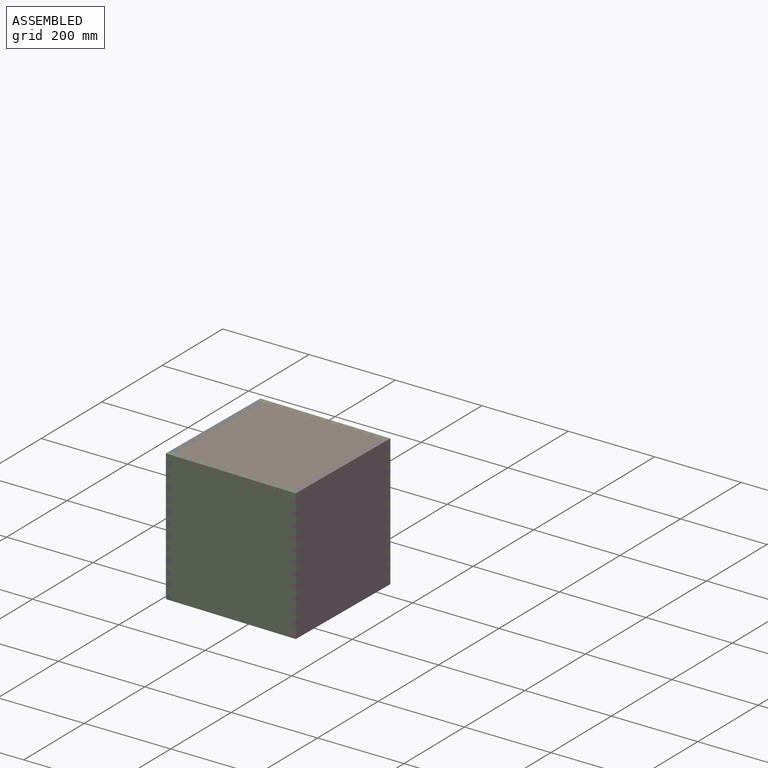
[diagram: assembled view]
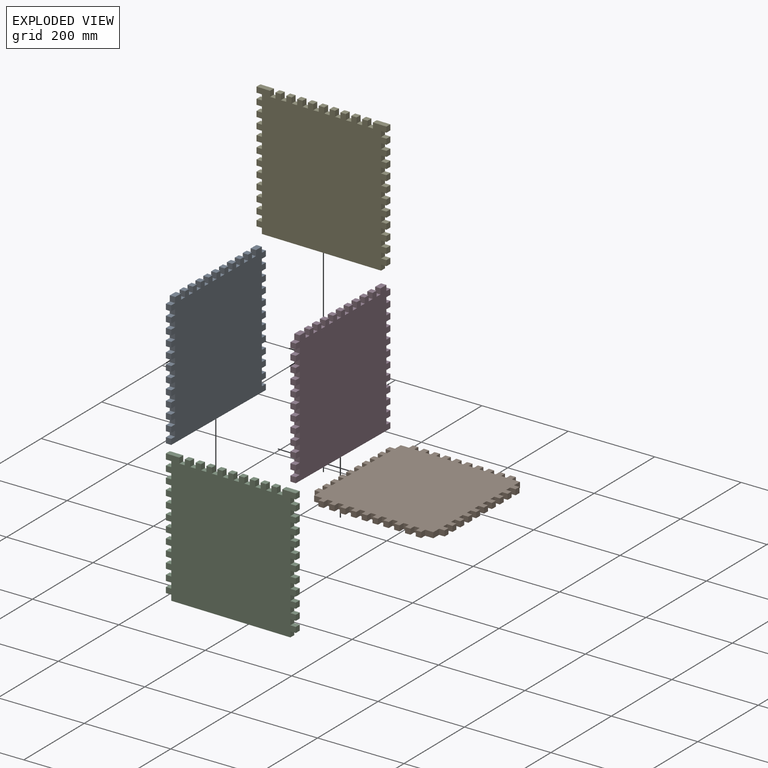
[diagram: exploded view]
GUIDED TOUR — MATED ASSEMBLY (Onshape document 2b9936c3375a75adb1b2ecce, AutoMate assembly 2b9936c3375a75adb1b2ecce_4f21fa2a8815077113d2563b_b55390586601b0d4ac6fc191_default)

This assembly has 5 components, labeled P0..P4 below (a component is one placed occurrence of a part; the same part can appear more than once), held together by 5 mates. A mate is a constraint between two components; its type names the relative motion it leaves free:
  FASTENED — locks the two components together rigidly (no relative motion).
Axis/direction vectors are unit vectors and 'through' points are millimeter coordinates, both in the assembly's world frame.

MATES
  1. FASTENED "Fastened 5": P1 <-> P2, direction (1.000, -0.018, 0.000) through (489.97, 732.56, 597.58) mm
  2. FASTENED "Fastened 1": P2 <-> P0, direction (0.000, 0.000, -1.000) through (223.31, 737.48, 311.83) mm
  3. FASTENED "Fastened 4": P3 <-> P2, direction (0.000, 0.000, 1.000) through (515.36, 732.10, 591.23) mm
  4. FASTENED "Fastened 3": P3 <-> P4, direction (0.000, 0.000, 1.000) through (520.75, 1024.15, 591.23) mm
  5. FASTENED "Fastened 2": P0 <-> P4, direction (0.000, 0.000, 1.000) through (228.70, 1029.53, 311.83) mm

ASSEMBLY ORDER
  1. P2 — the base component [order heuristic]
  2. P0 [order heuristic]
  3. P1 [order heuristic]
  4. P3 [order heuristic]
  5. P4 [order heuristic]
Order-tag legend:
  [order heuristic] — this assembly is geometrically interlocked (no collision-free removal order exists), so components are listed in mate-graph order; insertion feasibility is not verified.

Of the 5 components, 1 carries the full construction recipe — the FeatureScript program that regenerates the part's solid from scratch; the rest are supplied as boundary geometry only.
Each toured component is shown spotlighted twice — in the assembled view, then in the exploded view, where a leader line traces a displaced component back to its assembled socket (saturated green if recipe-attached, orange if geometry-only; every other component desaturated gray) — followed by its recipe or geometry summary and the mates that hold it.
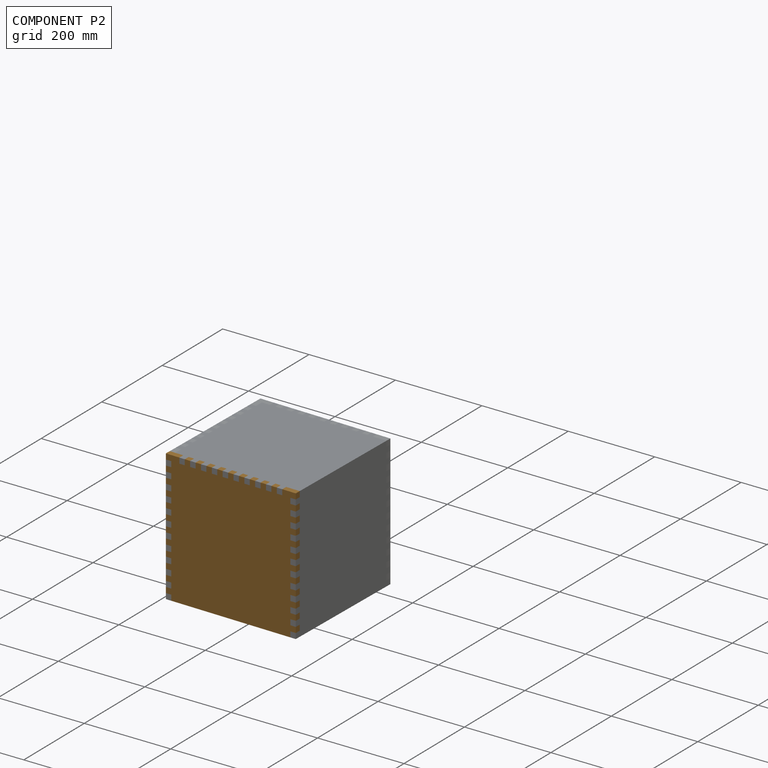
[diagram: component P2 — assembled]
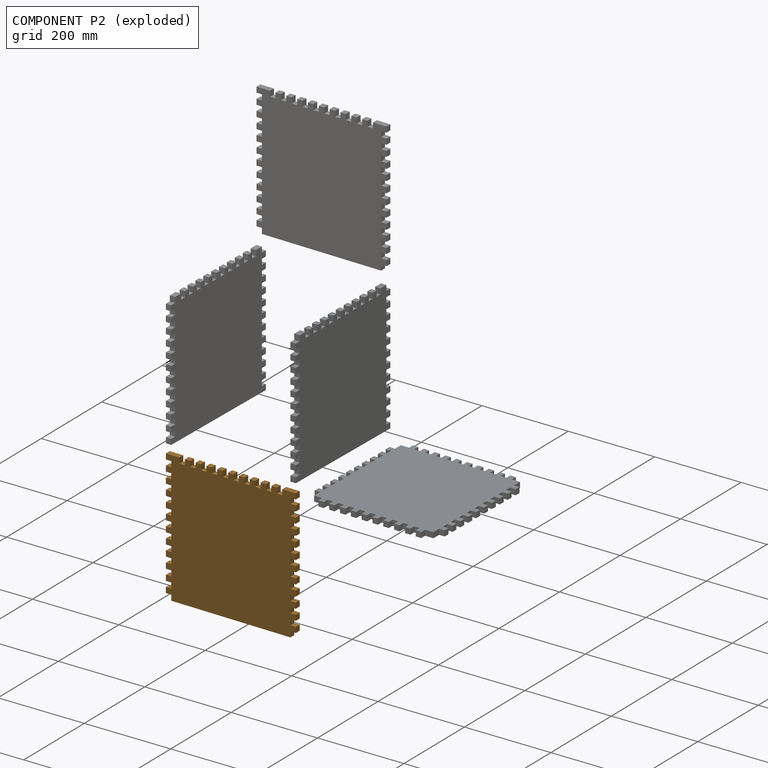
[diagram: component P2 — exploded]
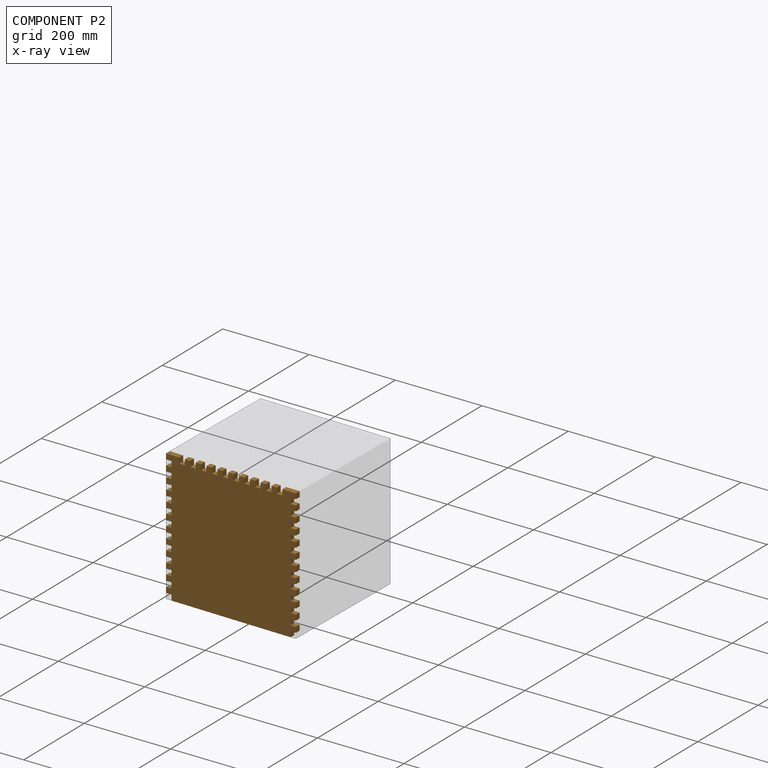
[diagram: component P2 — x-ray view]
COMPONENT P2 — geometry summary (no construction recipe available for this part):
  bounding box: 304.8 x 304.8 x 12.7 mm
  B-rep topology: 1 solid, 138 faces, 816 edges
  volume: 1110224 mm^3 (94% of its bounding box)
  symmetry: 2-fold rotationally symmetric about the z axis; mirror-symmetric across its x mid-plane, y mid-plane
Held by: FASTENED mate "Fastened 5" to P1; FASTENED mate "Fastened 1" to P0; FASTENED mate "Fastened 4" to P3.
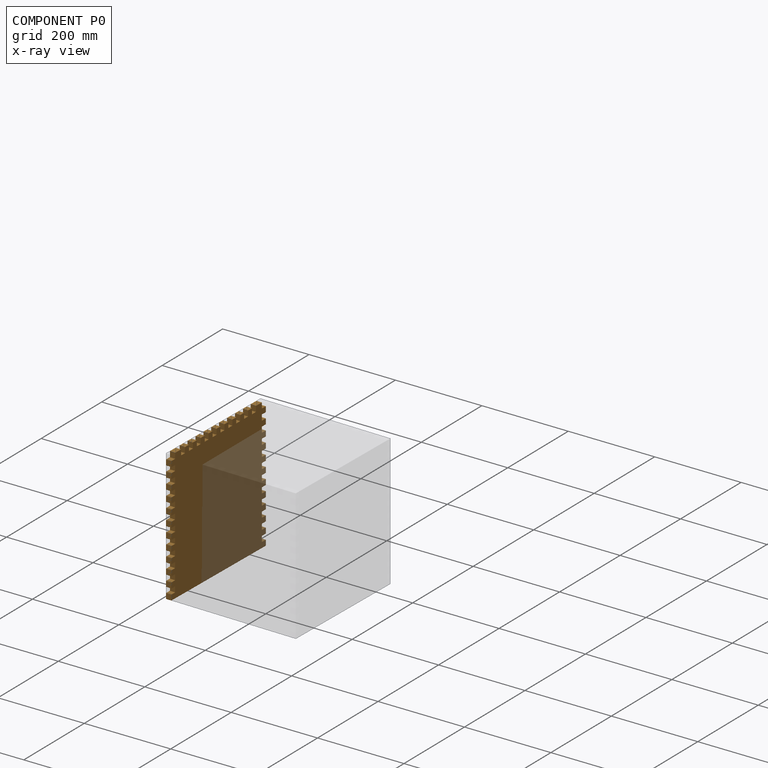
[diagram: component P0 — x-ray view]
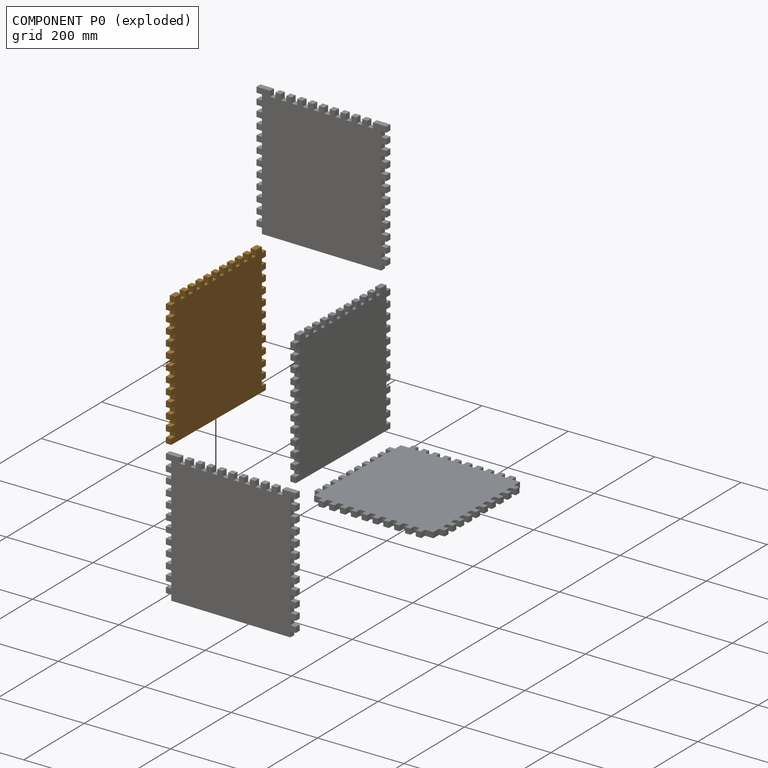
[diagram: component P0 — exploded]
COMPONENT P0 — geometry summary (no construction recipe available for this part):
  bounding box: 304.8 x 304.8 x 12.7 mm
  B-rep topology: 1 solid, 138 faces, 816 edges
  volume: 1110224 mm^3 (94% of its bounding box)
  symmetry: 2-fold rotationally symmetric about the z axis; mirror-symmetric across its x mid-plane, y mid-plane
Held by: FASTENED mate "Fastened 1" to P2; FASTENED mate "Fastened 2" to P4.
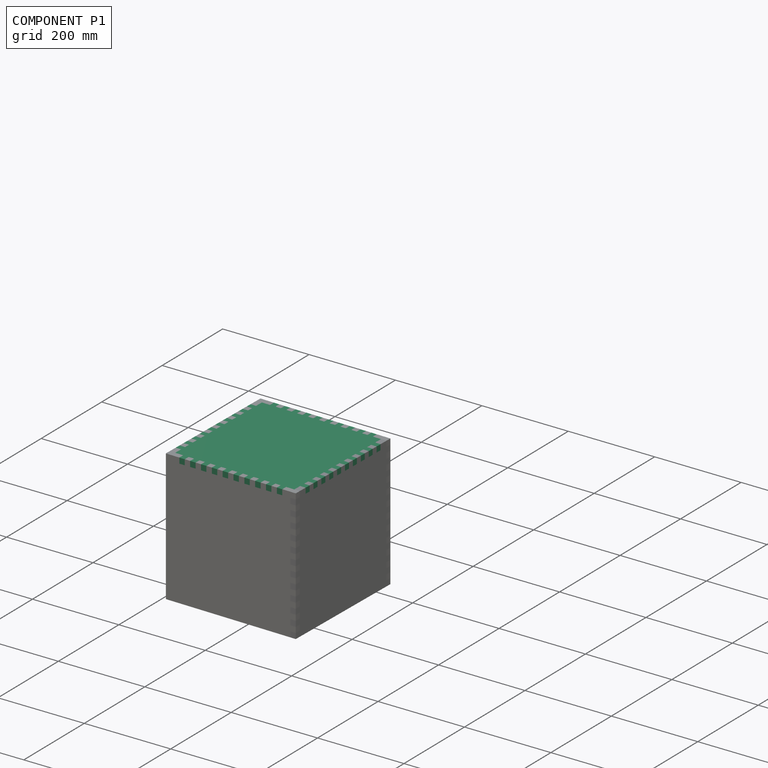
[diagram: component P1 — assembled]
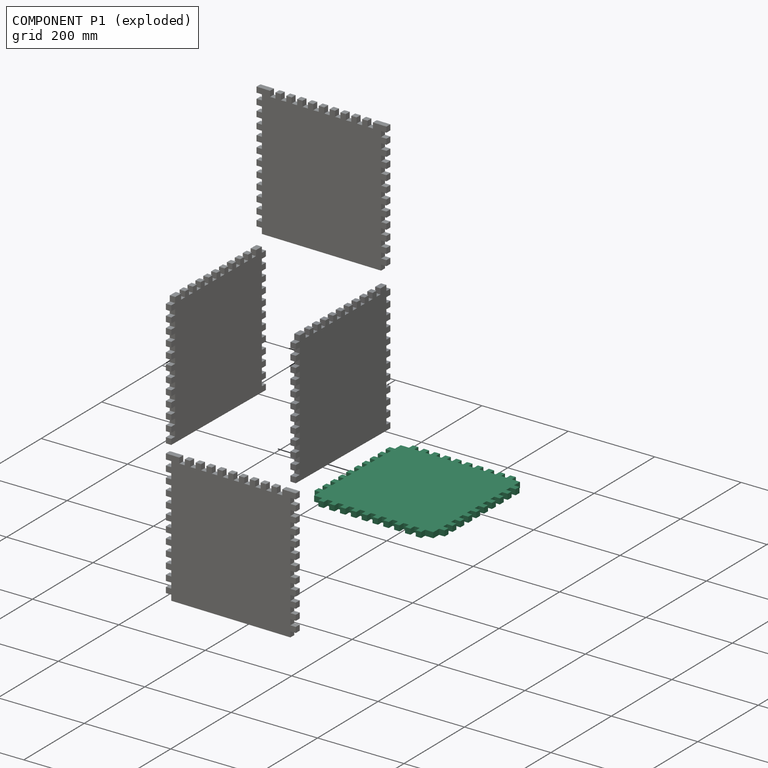
[diagram: component P1 — exploded]
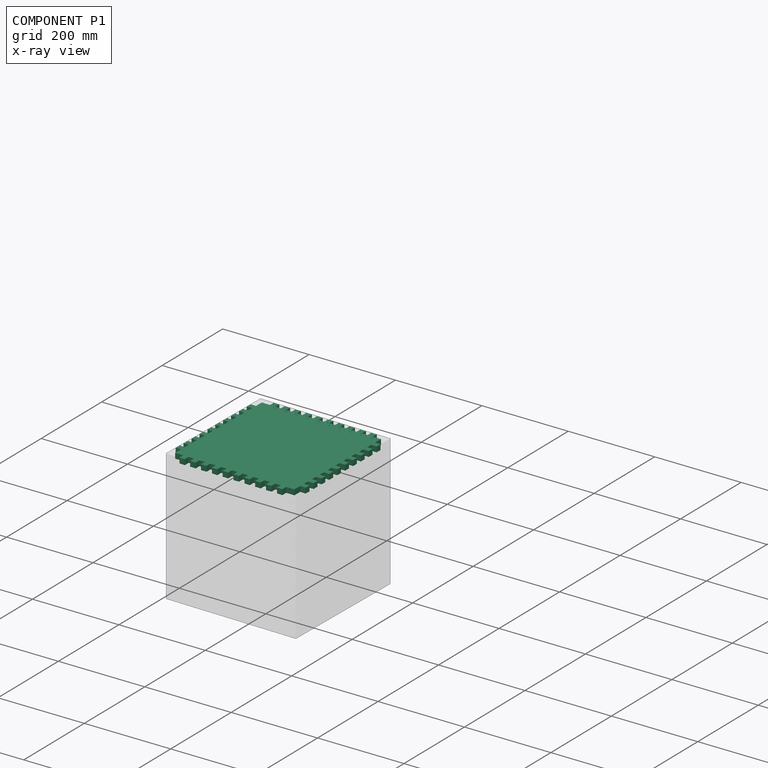
[diagram: component P1 — x-ray view]
COMPONENT P1 — recipe-attached (CADFS 00981755, mesh-verified: the recipe's output STEP matches this component's geometry to below the mesh-comparison resolution (tessellation chordal tolerance ~0.647 mm)).
Held by: FASTENED mate "Fastened 5" to P2.
Construction recipe (FeatureScript — the CAD program that rebuilds this solid; sketch coordinates are in the units given by the * unit suffixes, e.g. mm):

FeatureScript 1511;
import(path : "onshape/std/geometry.fs", version : "1511.0");
import(path : "onshape/std/common.fs", version : "1511.0");
const mm = millimeter;
const VERTEX = EntityType.VERTEX;
const EDGE = EntityType.EDGE;
const FACE = EntityType.FACE;
const BODY = EntityType.BODY;
function v(x, y){return vector(x, y);}
function OD(order){return orderDisambiguation(order);}
function OSD(set){return originalSetDisambiguation(set);}
function TD(topology){return topologyDisambiguation(topology);}
function TDD(query){return trueDependencyDisambiguation(query);}
function sQuery(a, b, c) {return sketchEntityQuery(a, b, c);}

annotation { "Feature Type Name" : "Feature", "Feature Type Description" : "" }
export const myFeature = defineFeature(function(context is Context, id is Id, definition is map)
    precondition{}
    {
        {
            var Q0;
            Q0=qCreatedBy(makeId("Front.planeOp"),FACE);
            var sketch = newSketch(context, id + "F0", { "sketchPlane" : qUnion([Q0])});
            skPoint(sketch, "E0.middle", {"position": v(0, 0) * mm});
            skLineSegment(sketch, "E1", {"start": v(-120.65, 139.7) * mm, "end": v(-120.65, 152.4) * mm});
            skLineSegment(sketch, "E2", {"start": v(-120.65, 152.4) * mm, "end": v(-107.95, 152.4) * mm});
            skLineSegment(sketch, "E3", {"start": v(-107.95, 152.4) * mm, "end": v(-107.95, 139.7) * mm});
            skLineSegment(sketch, "E4", {"start": v(-107.95, 139.7) * mm, "end": v(-95.25, 139.7) * mm});
            skLineSegment(sketch, "E5", {"start": v(-120.65, 139.7) * mm, "end": v(-139.7, 139.7) * mm});
            skLineSegment(sketch, "E6.1.0.0", {"start": v(-95.25, 152.4) * mm, "end": v(-82.55, 152.4) * mm});
            skLineSegment(sketch, "E6.1.0.1", {"start": v(-95.25, 139.7) * mm, "end": v(-95.25, 152.4) * mm});
            skLineSegment(sketch, "E6.1.0.2", {"start": v(-82.55, 139.7) * mm, "end": v(-69.85, 139.7) * mm});
            skLineSegment(sketch, "E6.1.0.3", {"start": v(-82.55, 152.4) * mm, "end": v(-82.55, 139.7) * mm});
            skLineSegment(sketch, "E6.2.0.0", {"start": v(-69.85, 152.4) * mm, "end": v(-57.15, 152.4) * mm});
            skLineSegment(sketch, "E6.2.0.1", {"start": v(-69.85, 139.7) * mm, "end": v(-69.85, 152.4) * mm});
            skLineSegment(sketch, "E6.2.0.2", {"start": v(-57.15, 139.7) * mm, "end": v(-44.45, 139.7) * mm});
            skLineSegment(sketch, "E6.2.0.3", {"start": v(-57.15, 152.4) * mm, "end": v(-57.15, 139.7) * mm});
            skLineSegment(sketch, "E6.3.0.0", {"start": v(-44.45, 152.4) * mm, "end": v(-31.75, 152.4) * mm});
            skLineSegment(sketch, "E6.3.0.1", {"start": v(-44.45, 139.7) * mm, "end": v(-44.45, 152.4) * mm});
            skLineSegment(sketch, "E6.3.0.2", {"start": v(-31.75, 139.7) * mm, "end": v(-19.05, 139.7) * mm});
            skLineSegment(sketch, "E6.3.0.3", {"start": v(-31.75, 152.4) * mm, "end": v(-31.75, 139.7) * mm});
            skLineSegment(sketch, "E6.4.0.0", {"start": v(-19.05, 152.4) * mm, "end": v(-6.35, 152.4) * mm});
            skLineSegment(sketch, "E6.4.0.1", {"start": v(-19.05, 139.7) * mm, "end": v(-19.05, 152.4) * mm});
            skLineSegment(sketch, "E6.4.0.2", {"start": v(-6.35, 139.7) * mm, "end": v(6.35, 139.7) * mm});
            skLineSegment(sketch, "E6.4.0.3", {"start": v(-6.35, 152.4) * mm, "end": v(-6.35, 139.7) * mm});
            skLineSegment(sketch, "E6.5.0.0", {"start": v(6.35, 152.4) * mm, "end": v(19.05, 152.4) * mm});
            skLineSegment(sketch, "E6.5.0.1", {"start": v(6.35, 139.7) * mm, "end": v(6.35, 152.4) * mm});
            skLineSegment(sketch, "E6.5.0.2", {"start": v(19.05, 139.7) * mm, "end": v(31.75, 139.7) * mm});
            skLineSegment(sketch, "E6.5.0.3", {"start": v(19.05, 152.4) * mm, "end": v(19.05, 139.7) * mm});
            skLineSegment(sketch, "E6.6.0.0", {"start": v(31.75, 152.4) * mm, "end": v(44.45, 152.4) * mm});
            skLineSegment(sketch, "E6.6.0.1", {"start": v(31.75, 139.7) * mm, "end": v(31.75, 152.4) * mm});
            skLineSegment(sketch, "E6.6.0.2", {"start": v(44.45, 139.7) * mm, "end": v(57.15, 139.7) * mm});
            skLineSegment(sketch, "E6.6.0.3", {"start": v(44.45, 152.4) * mm, "end": v(44.45, 139.7) * mm});
            skLineSegment(sketch, "E6.7.0.0", {"start": v(57.15, 152.4) * mm, "end": v(69.85, 152.4) * mm});
            skLineSegment(sketch, "E6.7.0.1", {"start": v(57.15, 139.7) * mm, "end": v(57.15, 152.4) * mm});
            skLineSegment(sketch, "E6.7.0.2", {"start": v(69.85, 139.7) * mm, "end": v(82.55, 139.7) * mm});
            skLineSegment(sketch, "E6.7.0.3", {"start": v(69.85, 152.4) * mm, "end": v(69.85, 139.7) * mm});
            skLineSegment(sketch, "E6.8.0.0", {"start": v(82.55, 152.4) * mm, "end": v(95.25, 152.4) * mm});
            skLineSegment(sketch, "E6.8.0.1", {"start": v(82.55, 139.7) * mm, "end": v(82.55, 152.4) * mm});
            skLineSegment(sketch, "E6.8.0.2", {"start": v(95.25, 139.7) * mm, "end": v(107.95, 139.7) * mm});
            skLineSegment(sketch, "E6.8.0.3", {"start": v(95.25, 152.4) * mm, "end": v(95.25, 139.7) * mm});
            skLineSegment(sketch, "E6.9.0.0", {"start": v(107.95, 152.4) * mm, "end": v(120.65, 152.4) * mm});
            skLineSegment(sketch, "E6.9.0.1", {"start": v(107.95, 139.7) * mm, "end": v(107.95, 152.4) * mm});
            skLineSegment(sketch, "E6.9.0.3", {"start": v(120.65, 152.4) * mm, "end": v(120.65, 139.7) * mm});
            skLineSegment(sketch, "E6.direction1", {"start": v(-120.65, 139.7) * mm, "end": v(-95.25, 139.7) * mm, "construction": true});
            skLineSegment(sketch, "E7", {"start": v(120.65, 139.7) * mm, "end": v(139.7, 139.7) * mm});
            skLineSegment(sketch, "E8.MirrorCS", {"start": v(-120.65, -139.7) * mm, "end": v(-95.25, -139.7) * mm, "construction": true});
            skLineSegment(sketch, "E9.MirrorCS", {"start": v(-95.25, -139.7) * mm, "end": v(-95.25, -152.4) * mm});
            skLineSegment(sketch, "E10.MirrorCS", {"start": v(-107.95, -152.4) * mm, "end": v(-107.95, -139.7) * mm});
            skLineSegment(sketch, "E11.MirrorCS", {"start": v(-107.95, -139.7) * mm, "end": v(-95.25, -139.7) * mm});
            skLineSegment(sketch, "E12.MirrorCS", {"start": v(-120.65, -152.4) * mm, "end": v(-107.95, -152.4) * mm});
            skLineSegment(sketch, "E13.MirrorCS", {"start": v(-95.25, -152.4) * mm, "end": v(-82.55, -152.4) * mm});
            skLineSegment(sketch, "E14.MirrorCS", {"start": v(-120.65, -139.7) * mm, "end": v(-120.65, -152.4) * mm});
            skLineSegment(sketch, "E15.MirrorCS", {"start": v(82.55, -139.7) * mm, "end": v(82.55, -152.4) * mm});
            skLineSegment(sketch, "E16.MirrorCS", {"start": v(82.55, -152.4) * mm, "end": v(95.25, -152.4) * mm});
            skLineSegment(sketch, "E17.MirrorCS", {"start": v(6.35, -152.4) * mm, "end": v(19.05, -152.4) * mm});
            skLineSegment(sketch, "E18.MirrorCS", {"start": v(-44.45, -152.4) * mm, "end": v(-31.75, -152.4) * mm});
            skLineSegment(sketch, "E19.MirrorCS", {"start": v(-31.75, -139.7) * mm, "end": v(-19.05, -139.7) * mm});
            skLineSegment(sketch, "E20.MirrorCS", {"start": v(-19.05, -152.4) * mm, "end": v(-6.35, -152.4) * mm});
            skLineSegment(sketch, "E21.MirrorCS", {"start": v(-82.55, -139.7) * mm, "end": v(-69.85, -139.7) * mm});
            skLineSegment(sketch, "E22.MirrorCS", {"start": v(-31.75, -152.4) * mm, "end": v(-31.75, -139.7) * mm});
            skLineSegment(sketch, "E23.MirrorCS", {"start": v(44.45, -152.4) * mm, "end": v(44.45, -139.7) * mm});
            skLineSegment(sketch, "E24.MirrorCS", {"start": v(31.75, -139.7) * mm, "end": v(31.75, -152.4) * mm});
            skLineSegment(sketch, "E25.MirrorCS", {"start": v(107.95, -139.7) * mm, "end": v(107.95, -152.4) * mm});
            skLineSegment(sketch, "E26.MirrorCS", {"start": v(-19.05, -139.7) * mm, "end": v(-19.05, -152.4) * mm});
            skLineSegment(sketch, "E27.MirrorCS", {"start": v(-69.85, -139.7) * mm, "end": v(-69.85, -152.4) * mm});
            skLineSegment(sketch, "E28.MirrorCS", {"start": v(107.95, -152.4) * mm, "end": v(120.65, -152.4) * mm});
            skLineSegment(sketch, "E29.MirrorCS", {"start": v(95.25, -152.4) * mm, "end": v(95.25, -139.7) * mm});
            skLineSegment(sketch, "E30.MirrorCS", {"start": v(31.75, -152.4) * mm, "end": v(44.45, -152.4) * mm});
            skLineSegment(sketch, "E31.MirrorCS", {"start": v(-6.35, -139.7) * mm, "end": v(6.35, -139.7) * mm});
            skLineSegment(sketch, "E32.MirrorCS", {"start": v(-69.85, -152.4) * mm, "end": v(-57.15, -152.4) * mm});
            skLineSegment(sketch, "E33.MirrorCS", {"start": v(69.85, -139.7) * mm, "end": v(82.55, -139.7) * mm});
            skLineSegment(sketch, "E34.MirrorCS", {"start": v(-6.35, -152.4) * mm, "end": v(-6.35, -139.7) * mm});
            skLineSegment(sketch, "E35.MirrorCS", {"start": v(57.15, -152.4) * mm, "end": v(69.85, -152.4) * mm});
            skLineSegment(sketch, "E36.MirrorCS", {"start": v(-44.45, -139.7) * mm, "end": v(-44.45, -152.4) * mm});
            skLineSegment(sketch, "E37.MirrorCS", {"start": v(-57.15, -139.7) * mm, "end": v(-44.45, -139.7) * mm});
            skLineSegment(sketch, "E38.MirrorCS", {"start": v(-120.65, -139.7) * mm, "end": v(-139.7, -139.7) * mm});
            skLineSegment(sketch, "E39.MirrorCS", {"start": v(-82.55, -152.4) * mm, "end": v(-82.55, -139.7) * mm});
            skLineSegment(sketch, "E40.MirrorCS", {"start": v(44.45, -139.7) * mm, "end": v(57.15, -139.7) * mm});
            skLineSegment(sketch, "E41.MirrorCS", {"start": v(95.25, -139.7) * mm, "end": v(107.95, -139.7) * mm});
            skLineSegment(sketch, "E42.MirrorCS", {"start": v(57.15, -139.7) * mm, "end": v(57.15, -152.4) * mm});
            skLineSegment(sketch, "E43.MirrorCS", {"start": v(69.85, -152.4) * mm, "end": v(69.85, -139.7) * mm});
            skLineSegment(sketch, "E44.MirrorCS", {"start": v(120.65, -152.4) * mm, "end": v(120.65, -139.7) * mm});
            skLineSegment(sketch, "E45.MirrorCS", {"start": v(-57.15, -152.4) * mm, "end": v(-57.15, -139.7) * mm});
            skLineSegment(sketch, "E46.MirrorCS", {"start": v(19.05, -152.4) * mm, "end": v(19.05, -139.7) * mm});
            skLineSegment(sketch, "E47.MirrorCS", {"start": v(120.65, -139.7) * mm, "end": v(139.7, -139.7) * mm});
            skLineSegment(sketch, "E48.MirrorCS", {"start": v(19.05, -139.7) * mm, "end": v(31.75, -139.7) * mm});
            skLineSegment(sketch, "E49.MirrorCS", {"start": v(6.35, -139.7) * mm, "end": v(6.35, -152.4) * mm});
            skLineSegment(sketch, "E50.MirrorCS", {"start": v(-152.4, 107.95) * mm, "end": v(-139.7, 107.95) * mm});
            skLineSegment(sketch, "E51.MirrorCS", {"start": v(-139.7, 107.95) * mm, "end": v(-139.7, 95.25) * mm});
            skLineSegment(sketch, "E52.MirrorCS", {"start": v(-152.4, 120.65) * mm, "end": v(-152.4, 107.95) * mm});
            skLineSegment(sketch, "E53.MirrorCS", {"start": v(-152.4, -107.95) * mm, "end": v(-152.4, -120.65) * mm});
            skLineSegment(sketch, "E54.MirrorCS", {"start": v(-139.7, 44.45) * mm, "end": v(-152.4, 44.45) * mm});
            skLineSegment(sketch, "E55.MirrorCS", {"start": v(-139.7, 69.85) * mm, "end": v(-152.4, 69.85) * mm});
            skLineSegment(sketch, "E56.MirrorCS", {"start": v(-152.4, -95.25) * mm, "end": v(-139.7, -95.25) * mm});
            skLineSegment(sketch, "E57.MirrorCS", {"start": v(-139.7, 6.35) * mm, "end": v(-139.7, -6.35) * mm});
            skLineSegment(sketch, "E58.MirrorCS", {"start": v(-139.7, 82.55) * mm, "end": v(-139.7, 69.85) * mm});
            skLineSegment(sketch, "E59.MirrorCS", {"start": v(-152.4, -31.75) * mm, "end": v(-152.4, -44.45) * mm});
            skLineSegment(sketch, "E60.MirrorCS", {"start": v(-139.7, -6.35) * mm, "end": v(-152.4, -6.35) * mm});
            skLineSegment(sketch, "E61.MirrorCS", {"start": v(-139.7, -95.25) * mm, "end": v(-139.7, -107.95) * mm});
            skLineSegment(sketch, "E62.MirrorCS", {"start": v(-139.7, -69.85) * mm, "end": v(-139.7, -82.55) * mm});
            skLineSegment(sketch, "E63.MirrorCS", {"start": v(-139.7, 95.25) * mm, "end": v(-152.4, 95.25) * mm});
            skLineSegment(sketch, "E64.MirrorCS", {"start": v(-139.7, 19.05) * mm, "end": v(-152.4, 19.05) * mm});
            skLineSegment(sketch, "E65.MirrorCS", {"start": v(-139.7, -31.75) * mm, "end": v(-152.4, -31.75) * mm});
            skLineSegment(sketch, "E66.MirrorCS", {"start": v(-152.4, 95.25) * mm, "end": v(-152.4, 82.55) * mm});
            skLineSegment(sketch, "E67.MirrorCS", {"start": v(-152.4, 69.85) * mm, "end": v(-152.4, 57.15) * mm});
            skLineSegment(sketch, "E68.MirrorCS", {"start": v(-152.4, 6.35) * mm, "end": v(-139.7, 6.35) * mm});
            skLineSegment(sketch, "E69.MirrorCS", {"start": v(-152.4, 31.75) * mm, "end": v(-139.7, 31.75) * mm});
            skLineSegment(sketch, "E70.MirrorCS", {"start": v(-152.4, -69.85) * mm, "end": v(-139.7, -69.85) * mm});
            skLineSegment(sketch, "E71.MirrorCS", {"start": v(-139.7, -82.55) * mm, "end": v(-152.4, -82.55) * mm});
            skLineSegment(sketch, "E72.MirrorCS", {"start": v(-152.4, 19.05) * mm, "end": v(-152.4, 6.35) * mm});
            skLineSegment(sketch, "E73.MirrorCS", {"start": v(-152.4, 82.55) * mm, "end": v(-139.7, 82.55) * mm});
            skLineSegment(sketch, "E74.MirrorCS", {"start": v(-152.4, -6.35) * mm, "end": v(-152.4, -19.05) * mm});
            skLineSegment(sketch, "E75.MirrorCS", {"start": v(-152.4, -82.55) * mm, "end": v(-152.4, -95.25) * mm});
            skLineSegment(sketch, "E76.MirrorCS", {"start": v(-152.4, -57.15) * mm, "end": v(-152.4, -69.85) * mm});
            skLineSegment(sketch, "E77.MirrorCS", {"start": v(-152.4, -120.65) * mm, "end": v(-139.7, -120.65) * mm});
            skLineSegment(sketch, "E78.MirrorCS", {"start": v(-139.7, 31.75) * mm, "end": v(-139.7, 19.05) * mm});
            skLineSegment(sketch, "E79.MirrorCS", {"start": v(-152.4, 57.15) * mm, "end": v(-139.7, 57.15) * mm});
            skLineSegment(sketch, "E80.MirrorCS", {"start": v(-139.7, -44.45) * mm, "end": v(-139.7, -57.15) * mm});
            skLineSegment(sketch, "E81.MirrorCS", {"start": v(-139.7, -19.05) * mm, "end": v(-139.7, -31.75) * mm});
            skLineSegment(sketch, "E82.MirrorCS", {"start": v(-139.7, -107.95) * mm, "end": v(-152.4, -107.95) * mm});
            skLineSegment(sketch, "E83.MirrorCS", {"start": v(-152.4, 44.45) * mm, "end": v(-152.4, 31.75) * mm});
            skLineSegment(sketch, "E84.MirrorCS", {"start": v(-152.4, -44.45) * mm, "end": v(-139.7, -44.45) * mm});
            skLineSegment(sketch, "E85.MirrorCS", {"start": v(-139.7, -120.65) * mm, "end": v(-139.7, -139.7) * mm});
            skLineSegment(sketch, "E86.MirrorCS", {"start": v(-139.7, 120.65) * mm, "end": v(-152.4, 120.65) * mm});
            skLineSegment(sketch, "E87.MirrorCS", {"start": v(-152.4, -19.05) * mm, "end": v(-139.7, -19.05) * mm});
            skLineSegment(sketch, "E88.MirrorCS", {"start": v(-139.7, -57.15) * mm, "end": v(-152.4, -57.15) * mm});
            skLineSegment(sketch, "E89.MirrorCS", {"start": v(-139.7, 120.65) * mm, "end": v(-139.7, 139.7) * mm});
            skLineSegment(sketch, "E90.MirrorCS", {"start": v(-139.7, 57.15) * mm, "end": v(-139.7, 44.45) * mm});
            skLineSegment(sketch, "E91.MirrorCS", {"start": v(139.7, -120.65) * mm, "end": v(139.7, -139.7) * mm});
            skLineSegment(sketch, "E92.MirrorCS", {"start": v(139.7, 120.65) * mm, "end": v(139.7, 139.7) * mm});
            skLineSegment(sketch, "E93.MirrorCS", {"start": v(152.4, 120.65) * mm, "end": v(152.4, 107.95) * mm});
            skLineSegment(sketch, "E94.MirrorCS", {"start": v(139.7, -31.75) * mm, "end": v(152.4, -31.75) * mm});
            skLineSegment(sketch, "E95.MirrorCS", {"start": v(139.7, -19.05) * mm, "end": v(139.7, -31.75) * mm});
            skLineSegment(sketch, "E96.MirrorCS", {"start": v(139.7, -44.45) * mm, "end": v(139.7, -57.15) * mm});
            skLineSegment(sketch, "E97.MirrorCS", {"start": v(139.7, 31.75) * mm, "end": v(139.7, 19.05) * mm});
            skLineSegment(sketch, "E98.MirrorCS", {"start": v(152.4, 107.95) * mm, "end": v(139.7, 107.95) * mm});
            skLineSegment(sketch, "E99.MirrorCS", {"start": v(152.4, -57.15) * mm, "end": v(152.4, -69.85) * mm});
            skLineSegment(sketch, "E100.MirrorCS", {"start": v(152.4, 6.35) * mm, "end": v(139.7, 6.35) * mm});
            skLineSegment(sketch, "E101.MirrorCS", {"start": v(139.7, 6.35) * mm, "end": v(139.7, -6.35) * mm});
            skLineSegment(sketch, "E102.MirrorCS", {"start": v(152.4, 95.25) * mm, "end": v(152.4, 82.55) * mm});
            skLineSegment(sketch, "E103.MirrorCS", {"start": v(152.4, -107.95) * mm, "end": v(152.4, -120.65) * mm});
            skLineSegment(sketch, "E104.MirrorCS", {"start": v(152.4, -95.25) * mm, "end": v(139.7, -95.25) * mm});
            skLineSegment(sketch, "E105.MirrorCS", {"start": v(139.7, 120.65) * mm, "end": v(152.4, 120.65) * mm});
            skLineSegment(sketch, "E106.MirrorCS", {"start": v(152.4, -69.85) * mm, "end": v(139.7, -69.85) * mm});
            skLineSegment(sketch, "E107.MirrorCS", {"start": v(139.7, 57.15) * mm, "end": v(139.7, 44.45) * mm});
            skLineSegment(sketch, "E108.MirrorCS", {"start": v(139.7, -107.95) * mm, "end": v(152.4, -107.95) * mm});
            skLineSegment(sketch, "E109.MirrorCS", {"start": v(152.4, -120.65) * mm, "end": v(139.7, -120.65) * mm});
            skLineSegment(sketch, "E110.MirrorCS", {"start": v(152.4, -6.35) * mm, "end": v(152.4, -19.05) * mm});
            skLineSegment(sketch, "E111.MirrorCS", {"start": v(152.4, 69.85) * mm, "end": v(152.4, 57.15) * mm});
            skLineSegment(sketch, "E112.MirrorCS", {"start": v(152.4, -31.75) * mm, "end": v(152.4, -44.45) * mm});
            skLineSegment(sketch, "E113.MirrorCS", {"start": v(139.7, -82.55) * mm, "end": v(152.4, -82.55) * mm});
            skLineSegment(sketch, "E114.MirrorCS", {"start": v(152.4, -82.55) * mm, "end": v(152.4, -95.25) * mm});
            skLineSegment(sketch, "E115.MirrorCS", {"start": v(139.7, -57.15) * mm, "end": v(152.4, -57.15) * mm});
            skLineSegment(sketch, "E116.MirrorCS", {"start": v(139.7, 69.85) * mm, "end": v(152.4, 69.85) * mm});
            skLineSegment(sketch, "E117.MirrorCS", {"start": v(139.7, 19.05) * mm, "end": v(152.4, 19.05) * mm});
            skLineSegment(sketch, "E118.MirrorCS", {"start": v(152.4, 82.55) * mm, "end": v(139.7, 82.55) * mm});
            skLineSegment(sketch, "E119.MirrorCS", {"start": v(139.7, -95.25) * mm, "end": v(139.7, -107.95) * mm});
            skLineSegment(sketch, "E120.MirrorCS", {"start": v(152.4, 31.75) * mm, "end": v(139.7, 31.75) * mm});
            skLineSegment(sketch, "E121.MirrorCS", {"start": v(139.7, 95.25) * mm, "end": v(152.4, 95.25) * mm});
            skLineSegment(sketch, "E122.MirrorCS", {"start": v(139.7, 82.55) * mm, "end": v(139.7, 69.85) * mm});
            skLineSegment(sketch, "E123.MirrorCS", {"start": v(139.7, 44.45) * mm, "end": v(152.4, 44.45) * mm});
            skLineSegment(sketch, "E124.MirrorCS", {"start": v(152.4, -44.45) * mm, "end": v(139.7, -44.45) * mm});
            skLineSegment(sketch, "E125.MirrorCS", {"start": v(139.7, -69.85) * mm, "end": v(139.7, -82.55) * mm});
            skLineSegment(sketch, "E126.MirrorCS", {"start": v(152.4, -19.05) * mm, "end": v(139.7, -19.05) * mm});
            skLineSegment(sketch, "E127.MirrorCS", {"start": v(139.7, -6.35) * mm, "end": v(152.4, -6.35) * mm});
            skLineSegment(sketch, "E128.MirrorCS", {"start": v(152.4, 57.15) * mm, "end": v(139.7, 57.15) * mm});
            skLineSegment(sketch, "E129.MirrorCS", {"start": v(152.4, 19.05) * mm, "end": v(152.4, 6.35) * mm});
            skLineSegment(sketch, "E130.MirrorCS", {"start": v(152.4, 44.45) * mm, "end": v(152.4, 31.75) * mm});
            skLineSegment(sketch, "E131.MirrorCS", {"start": v(139.7, 107.95) * mm, "end": v(139.7, 95.25) * mm});
            skSolve(sketch);
        }
        {
            var Q0;
            Q0=makeQuery(id+"F0.imprint","IMPRINT",FACE,{"disambiguationData":[TD([[makeQuery(id+"F0.imprint","IMPRINT",EDGE,{"derivedFrom":sQuery(id+"F0.wireOp",EDGE,"E1")}),-1.0]])]});
            extrude(context, id + "F1", {"entities" : qUnion([Q0]), "depth" : 12.7 * mm, "offsetDistance" : 25.4 * mm});
        }
    });
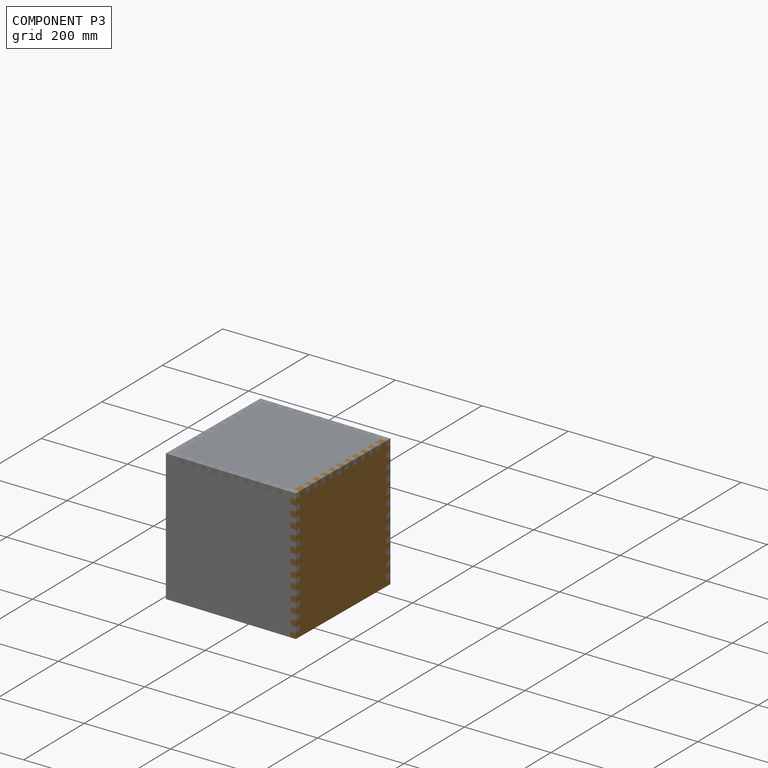
[diagram: component P3 — assembled]
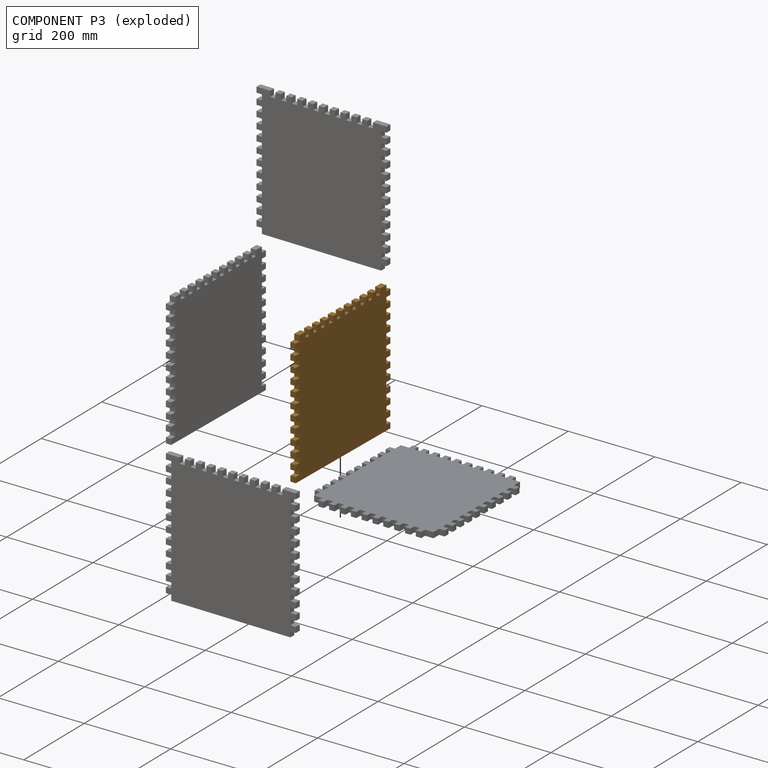
[diagram: component P3 — exploded]
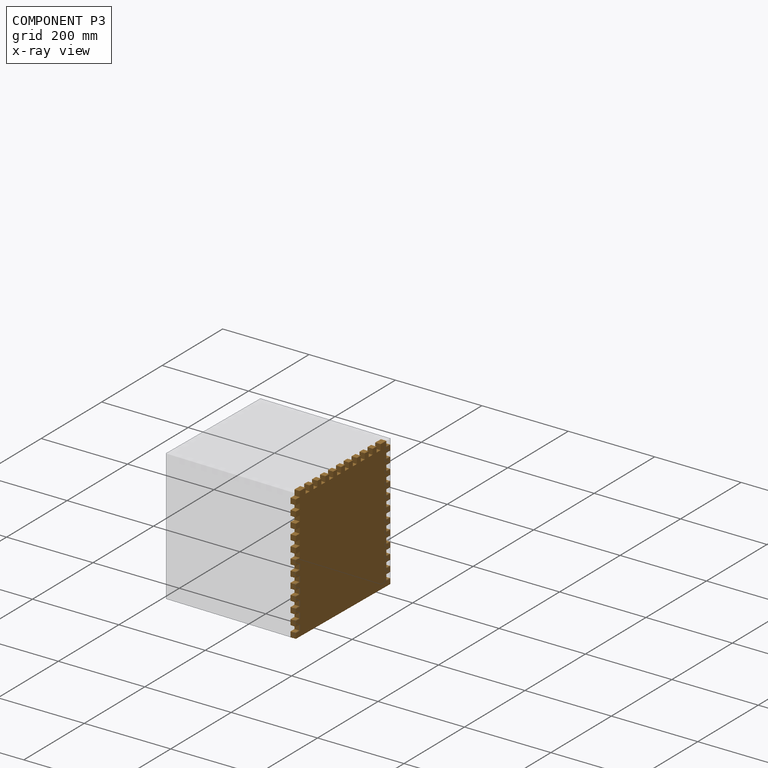
[diagram: component P3 — x-ray view]
COMPONENT P3 — geometry summary (no construction recipe available for this part):
  bounding box: 304.8 x 304.8 x 12.7 mm
  B-rep topology: 1 solid, 138 faces, 816 edges
  volume: 1110224 mm^3 (94% of its bounding box)
  symmetry: 2-fold rotationally symmetric about the z axis; mirror-symmetric across its x mid-plane, y mid-plane
Held by: FASTENED mate "Fastened 4" to P2; FASTENED mate "Fastened 3" to P4.
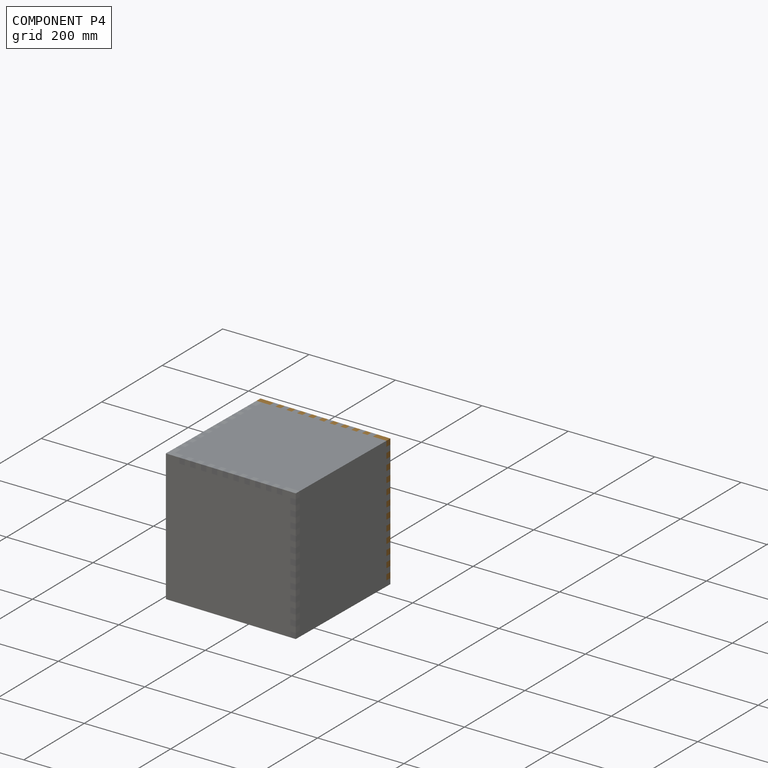
[diagram: component P4 — assembled]
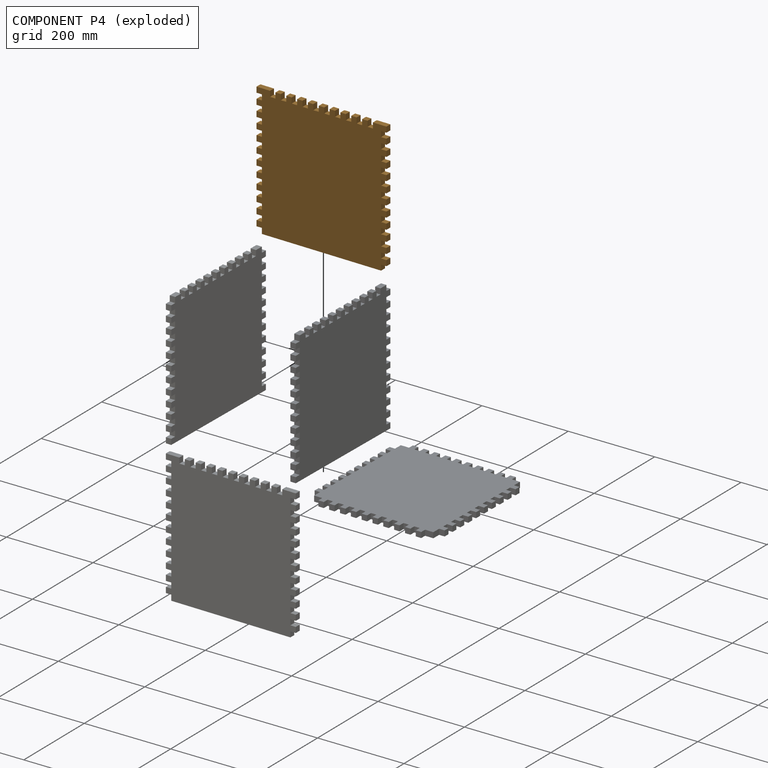
[diagram: component P4 — exploded]
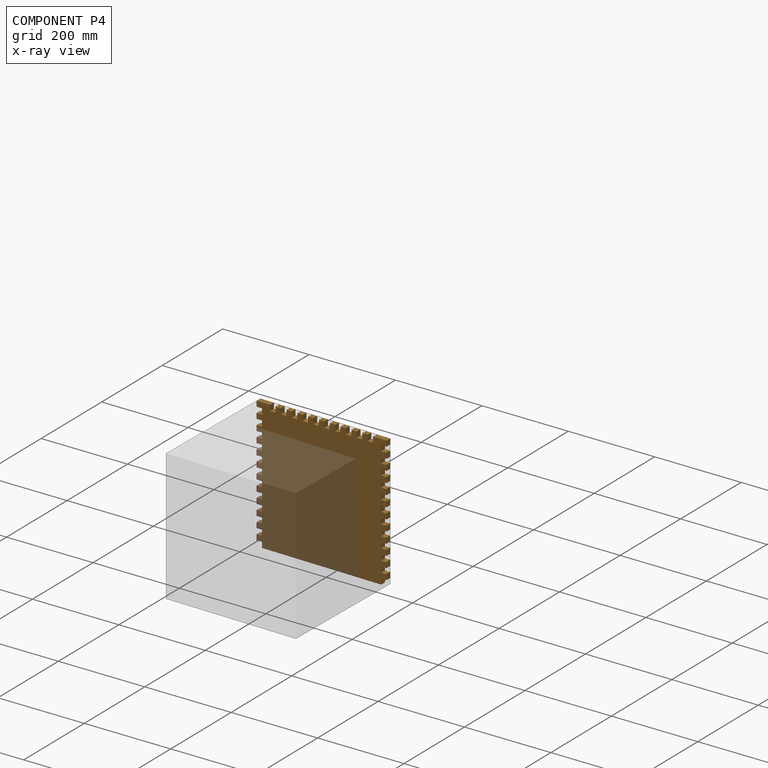
[diagram: component P4 — x-ray view]
COMPONENT P4 — geometry summary (no construction recipe available for this part):
  bounding box: 304.8 x 304.8 x 12.7 mm
  B-rep topology: 1 solid, 138 faces, 816 edges
  volume: 1110224 mm^3 (94% of its bounding box)
  symmetry: 2-fold rotationally symmetric about the z axis; mirror-symmetric across its x mid-plane, y mid-plane
Held by: FASTENED mate "Fastened 3" to P3; FASTENED mate "Fastened 2" to P0.
PROVENANCE & LICENSES
Assembly (occurrences, transforms, mates, per-part STEP geometry): AutoMate dataset, Zenodo record 7776208, CC0.
Construction recipes: CADFS (HuggingFace VladPyatov/CADFS, CC-BY-4.0, layered over the ABC dataset), FeatureScript reconstruction programs keyed by ABC model id.
Join: ABC meta listings map ABC model id -> Onshape documentId; within a shared document, parts are matched by geometric signature (bounding-box dims + volume at 0.1% relative tolerance, exact B-rep face/solid counts).
Verification: 1 of this assembly's 5 components carries a recipe attachment, and every attachment is mesh-verified: the CADFS STEP and the AutoMate member STEP were compared as meshes in their shared local frame (symmetric sampled-point-to-mesh distance); worst across the 1 attachment: below the mesh-comparison resolution (tessellation chordal tolerance ~0.647 mm) on a 431 mm part.
Renders: orthographic iso camera (az 35 / el 25); the floor grid conveys scale (grid pitch printed in each image; no ruler). In the exploded view each component is displaced by its stored offset vector: the offsets alone carry the explosion direction (mate normal/axis signs are not orientation cues and do not encode it), and separation distances are assigned per mate-chain, not proportionally to assembly-order depth.
